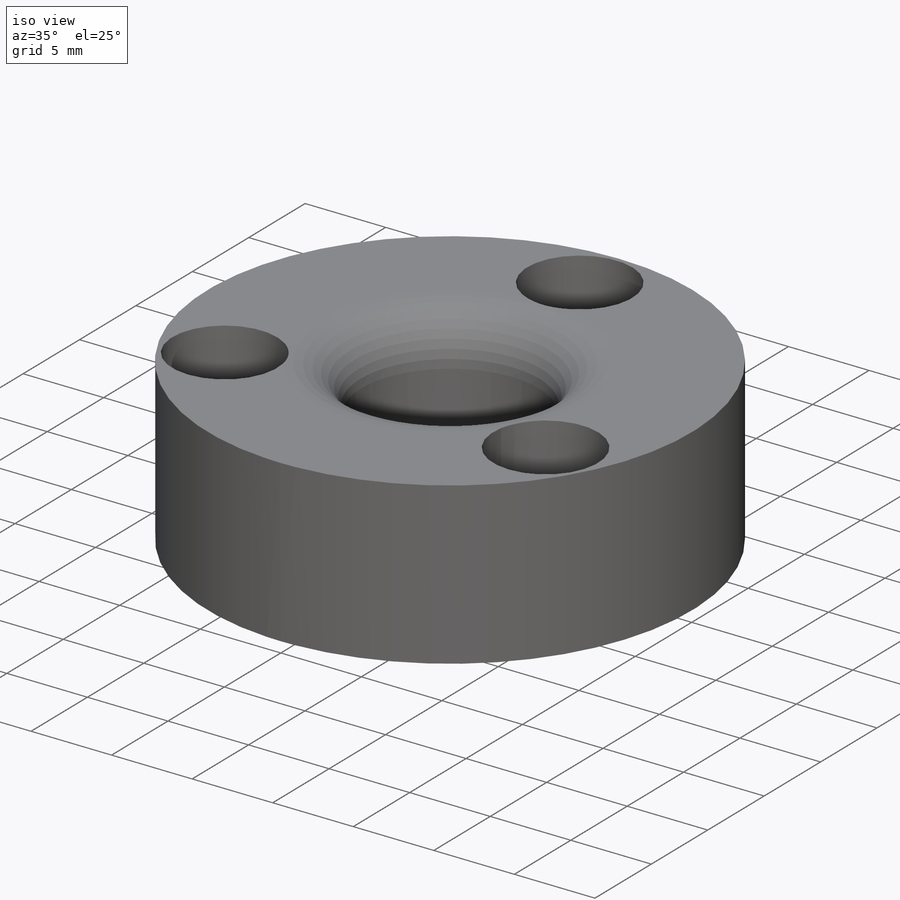
[diagram: iso view]
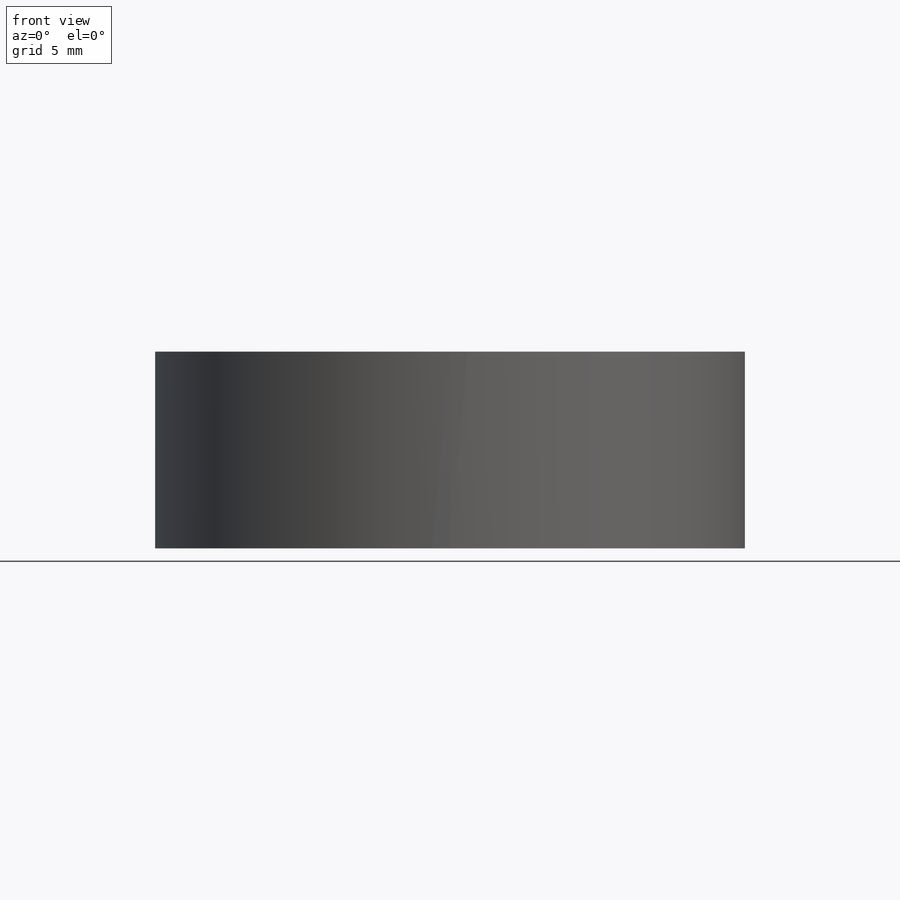
[diagram: front view]
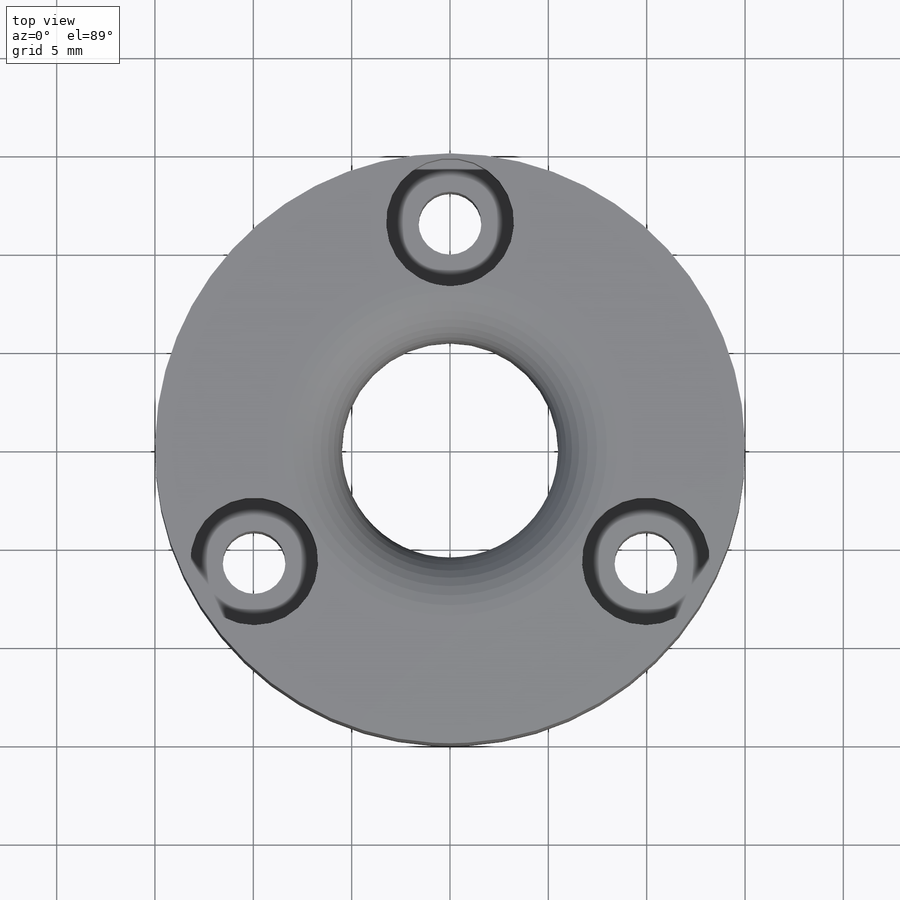
[diagram: top view]
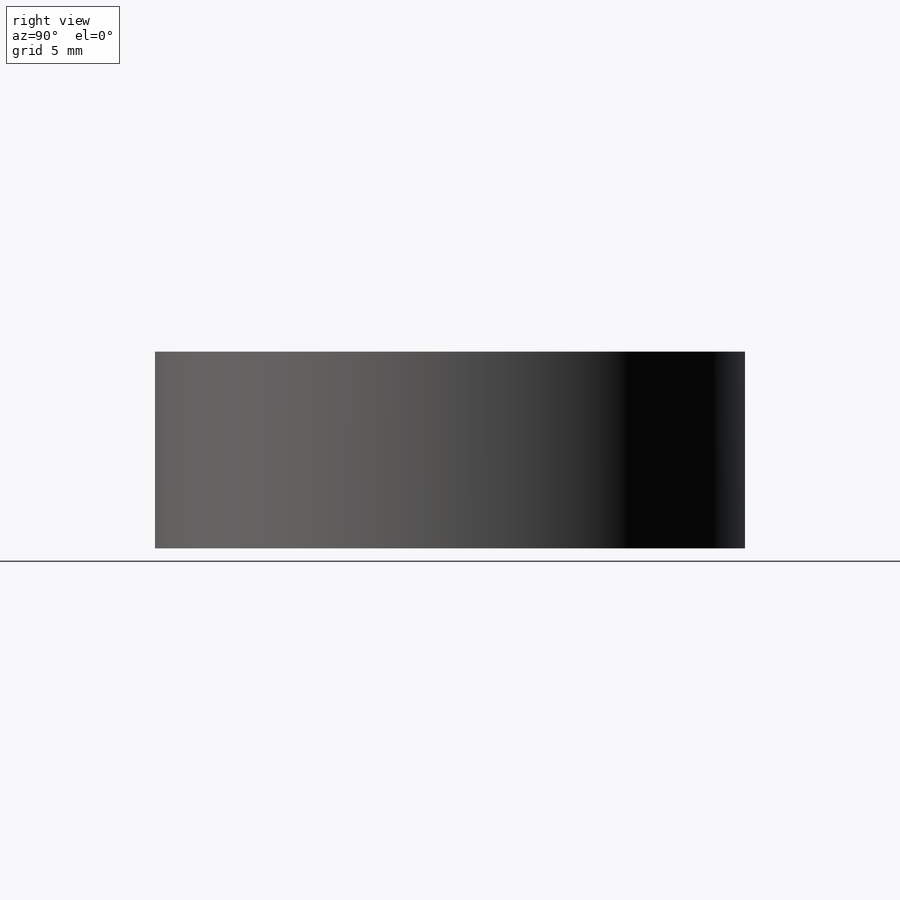
[diagram: right view]
SOLIDWORKS PART (.sldprt)
format: sldprt  version: not decoded by parser v0  size: 211,968 bytes
history: native  units: mm
features: sketch x3, material x1, extrude x1, fillet x1, hole x1, pattern_circular x1 (+16 scaffold rows collapsed)
feature tree (24):
  scaffold x16  (default folders/planes/origin — collapsed)
  material  "Alloy Steel (SS)"
  sketch  "Sketch1"  dims[D1=30.0mm D2=11.0mm]
  extrude  "Boss-Extrude1"  Depth=10mm
  fillet  "Fillet1"  Radius=3mm
  hole  "CBORE for M3 SHCS1"  Diameter=3.2mm Depth=10mm
  sketch  "Sketch3"  dims[D1=11.5mm]
  sketch  "Sketch2"  dims[hole-wizard template sketch: 42 standard entries collapsed; hole parameters kept: c12.Thru Hole Depth=10.0mm c12.C'Bore Dia.=6.5mm c12.C'Bore Depth=3.0mm]
  pattern_circular  "CirPattern1"  Count=3 Angle=360deg
decode coverage: 7 of 7 modeling features carry decoded parameters
note: ~ marks probable driven/reference dimensions
note: suppression state not decoded; provenance and decode notes live in map.json
